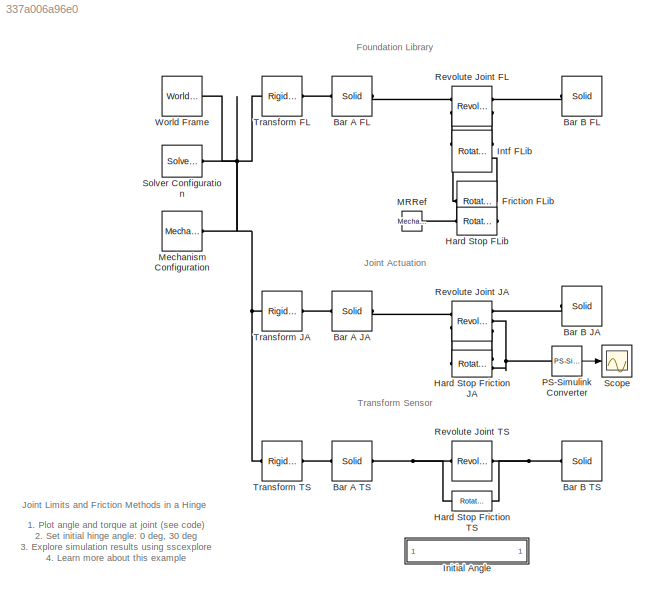
MODEL slx_337a006a96e0
KIND model
CONFIG AbsTol = 1e-3
CONFIG EnableMultiTasking = on
CONFIG FixedStep = auto
CONFIG MaxStep = auto
CONFIG MinStep = auto
CONFIG PostLoadFcn = warning off sm:compiler:topologyAnalysis:DanglingBlock\n
CONFIG PreLoadFcn = init_hinge_angle = 0;
CONFIG RelTol = 1e-3
CONFIG SampleTimeConstraint = Unconstrained
CONFIG Solver = VariableStepAuto
CONFIG SolverName = VariableStepAuto
CONFIG StartTime = 0.0
CONFIG StopTime = 10.0
BLOCK [Reference] Bar A FL  REF=sm_lib/Body Elements/Solid
  Ports = [0, 0, 0, 0, 0, 1, 1]
  SourceBlock = sm_lib/Body Elements/Solid
  SourceProductBaseCode = MS
  SourceProductName = Simscape Multibody
  SourceType = Solid
BLOCK [Reference] Bar A JA  REF=sm_lib/Body Elements/Solid
  Ports = [0, 0, 0, 0, 0, 1, 1]
  SourceBlock = sm_lib/Body Elements/Solid
  SourceProductBaseCode = MS
  SourceProductName = Simscape Multibody
  SourceType = Solid
BLOCK [Reference] Bar A TS  REF=sm_lib/Body Elements/Solid
  Ports = [0, 0, 0, 0, 0, 1, 1]
  SourceBlock = sm_lib/Body Elements/Solid
  SourceProductBaseCode = MS
  SourceProductName = Simscape Multibody
  SourceType = Solid
BLOCK [Reference] Bar B FL  REF=sm_lib/Body Elements/Solid
  Ports = [0, 0, 0, 0, 0, 1, 1]
  SourceBlock = sm_lib/Body Elements/Solid
  SourceProductBaseCode = MS
  SourceProductName = Simscape Multibody
  SourceType = Solid
BLOCK [Reference] Bar B JA  REF=sm_lib/Body Elements/Solid
  Ports = [0, 0, 0, 0, 0, 1, 1]
  SourceBlock = sm_lib/Body Elements/Solid
  SourceProductBaseCode = MS
  SourceProductName = Simscape Multibody
  SourceType = Solid
BLOCK [Reference] Bar B TS  REF=sm_lib/Body Elements/Solid
  Ports = [0, 0, 0, 0, 0, 1, 1]
  SourceBlock = sm_lib/Body Elements/Solid
  SourceProductBaseCode = MS
  SourceProductName = Simscape Multibody
  SourceType = Solid
BLOCK [Reference] Friction FLib  REF=fl_lib/Mechanical/Rotational Elements/Rotational Friction
  Ports = [0, 0, 0, 0, 0, 1, 1]
  SourceBlock = fl_lib/Mechanical/Rotational Elements/Rotational Friction
  SourceProductBaseCode = SS
  SourceProductName = Simscape
  SourceType = Rotational Friction
BLOCK [Reference] Hard Stop FLib  REF=fl_lib/Mechanical/Rotational Elements/Rotational Hard Stop
  Ports = [0, 0, 0, 0, 0, 1, 1]
  SourceBlock = fl_lib/Mechanical/Rotational Elements/Rotational Hard Stop
  SourceProductBaseCode = SS
  SourceProductName = Simscape
  SourceType = Rotational Hard Stop
BLOCK [Reference] Hard Stop Friction JA  REF=Multibody_Multiphysics_Lib/Mechanical/Rotational
Hard Stop
Friction PS
  Ports = [0, 0, 0, 0, 0, 1, 2]
  SourceBlock = Multibody_Multiphysics_Lib/Mechanical/Rotational\nHard Stop\nFriction PS
  SourceProductName = Simscape Multibody Multiphysics Library
  SourceType = Rotational Hard Stop and Friction, PS Ports
  Tag = PublishSubsystem
BLOCK [Reference] Hard Stop Friction TS  REF=Multibody_Multiphysics_Lib/Mechanical/Rotational
Hard Stop
Friction
  Ports = [0, 0, 0, 0, 0, 1, 1]
  SourceBlock = Multibody_Multiphysics_Lib/Mechanical/Rotational\nHard Stop\nFriction
  SourceProductName = Simscape Multibody Multiphysics Library
  SourceType = Rotational Hard Stop and Friction, Multibody Ports
  Tag = PublishSubsystem
BLOCK [SubSystem] Initial Angle
  Ports = []
  RequestExecContextInheritance = off
  Variant = off
BLOCK [Reference] Intf FLib  REF=Multibody_Multiphysics_Lib/Interfaces/Rotational
Simscape Intf
  Ports = [0, 0, 0, 0, 0, 2, 2]
  SourceBlock = Multibody_Multiphysics_Lib/Interfaces/Rotational\nSimscape Intf
  SourceProductName = Simscape Multibody Multiphysics Library
  SourceType = SubSystem
  Tag = PublishSubsystem
BLOCK [Reference] MRRef  REF=fl_lib/Mechanical/Rotational Elements/Mechanical
Rotational Reference
  Ports = [0, 0, 0, 0, 0, 1]
  SourceBlock = fl_lib/Mechanical/Rotational Elements/Mechanical\nRotational Reference
  SourceProductBaseCode = SS
  SourceProductName = Simscape
  SourceType = Mechanical\nRotational Reference
BLOCK [Reference] Mechanism Configuration  REF=sm_lib/Utilities/Mechanism
Configuration
  Ports = [0, 0, 0, 0, 0, 0, 1]
  SourceBlock = sm_lib/Utilities/Mechanism\nConfiguration
  SourceProductBaseCode = MS
  SourceProductName = Simscape Multibody
  SourceType = Mechanism\nConfiguration
BLOCK [Reference] PS-Simulink Converter  REF=nesl_utility/PS-Simulink
Converter
  Ports = [0, 1, 0, 0, 0, 1]
  SourceBlock = nesl_utility/PS-Simulink\nConverter
  SourceProductBaseCode = SS
  SourceProductName = Simscape
  SourceType = PS-Simulink\nConverter
BLOCK [Reference] Revolute Joint  FL  REF=sm_lib/Joints/Revolute Joint
  Ports = [0, 0, 0, 0, 0, 2, 2]
  SourceBlock = sm_lib/Joints/Revolute Joint
  SourceProductBaseCode = MS
  SourceProductName = Simscape Multibody
  SourceType = Revolute Joint
BLOCK [Reference] Revolute Joint JA  REF=sm_lib/Joints/Revolute Joint
  Ports = [0, 0, 0, 0, 0, 2, 3]
  SourceBlock = sm_lib/Joints/Revolute Joint
  SourceProductBaseCode = MS
  SourceProductName = Simscape Multibody
  SourceType = Revolute Joint
BLOCK [Reference] Revolute Joint TS  REF=sm_lib/Joints/Revolute Joint
  Ports = [0, 0, 0, 0, 0, 1, 1]
  SourceBlock = sm_lib/Joints/Revolute Joint
  SourceProductBaseCode = MS
  SourceProductName = Simscape Multibody
  SourceType = Revolute Joint
BLOCK [Scope] Scope
  NumInputPorts = 1
  Ports = [1]
  ScopeSpecificationString = Simulink.scopes.TimeScopeBlockCfg('CurrentConfiguration', extmgr.ConfigurationSet(extmgr.Configuration('Core','General UI',true,'FigureColor',[0.501960784313725 0.501960784313725 0.501960784313725]),extmgr.Configuration('Core','Source UI',true),extmgr.Configuration('Sources','WiredSimulink',true,'DataLoggingSaveFormat','StructureWithTime','DataLoggingDecimation','1'),extmgr.Configuration('Visuals'...<+2604ch>
BLOCK [Reference] Solver Configuration  REF=nesl_utility/Solver
Configuration
  Ports = [0, 0, 0, 0, 0, 0, 1]
  SourceBlock = nesl_utility/Solver\nConfiguration
  SourceProductBaseCode = SS
  SourceProductName = Simscape
  SourceType = Solver\nConfiguration
BLOCK [Reference] Transform FL  REF=sm_lib/Frames and
Transforms/Rigid
Transform
  Ports = [0, 0, 0, 0, 0, 1, 1]
  SourceBlock = sm_lib/Frames and\nTransforms/Rigid\nTransform
  SourceProductBaseCode = MS
  SourceProductName = Simscape Multibody
  SourceType = Rigid\nTransform
BLOCK [Reference] Transform JA  REF=sm_lib/Frames and
Transforms/Rigid
Transform
  Ports = [0, 0, 0, 0, 0, 1, 1]
  SourceBlock = sm_lib/Frames and\nTransforms/Rigid\nTransform
  SourceProductBaseCode = MS
  SourceProductName = Simscape Multibody
  SourceType = Rigid\nTransform
BLOCK [Reference] Transform TS  REF=sm_lib/Frames and
Transforms/Rigid
Transform
  Ports = [0, 0, 0, 0, 0, 1, 1]
  SourceBlock = sm_lib/Frames and\nTransforms/Rigid\nTransform
  SourceProductBaseCode = MS
  SourceProductName = Simscape Multibody
  SourceType = Rigid\nTransform
BLOCK [Reference] World Frame  REF=sm_lib/Frames and
Transforms/World Frame
  Ports = [0, 0, 0, 0, 0, 0, 1]
  SourceBlock = sm_lib/Frames and\nTransforms/World Frame
  SourceProductBaseCode = MS
  SourceProductName = Simscape Multibody
  SourceType = World Frame
ANNOTATION (root): 1. Plot angle and torque at joint ( see code ) 2. Set initial hinge angle: 0 deg , 30 deg 3. Explore simulation results using sscexplore 4. Learn more about this example
ANNOTATION (root): Foundation Library
ANNOTATION (root): Joint Actuation
ANNOTATION (root): Joint Limits and Friction Methods in a Hinge
ANNOTATION (root): Transform Sensor
LINE PS-Simulink Converter:1 -> Scope:1
PLINE Bar A FL:LConn1 -- Transform FL:RConn1
PLINE Bar A FL:RConn1 -- Revolute Joint  FL:LConn1
PLINE Bar A JA:LConn1 -- Transform JA:RConn1
PLINE Bar A JA:RConn1 -- Revolute Joint JA:LConn1
PLINE Bar A TS:LConn1 -- Transform TS:RConn1
PNET net1: Bar A TS:RConn1 -- Hard Stop Friction TS:LConn1 -- Revolute Joint TS:LConn1
PLINE Bar B FL:LConn1 -- Revolute Joint  FL:RConn1
PLINE Bar B JA:LConn1 -- Revolute Joint JA:RConn1
PNET net2: Bar B TS:LConn1 -- Hard Stop Friction TS:RConn1 -- Revolute Joint TS:RConn1
PNET net3: Friction FLib:LConn1 -- Hard Stop FLib:LConn1 -- Intf FLib:RConn2
PNET net4: Friction FLib:RConn1 -- Hard Stop FLib:RConn1 -- Intf FLib:LConn2 -- MRRef:LConn1
PLINE Hard Stop Friction JA:LConn1 -- Revolute Joint JA:LConn2
PLINE Hard Stop Friction JA:RConn1 -- Revolute Joint JA:RConn3
PNET net5: Hard Stop Friction JA:RConn2 -- PS-Simulink Converter:LConn1 -- Revolute Joint JA:RConn2
PLINE Intf FLib:LConn1 -- Revolute Joint  FL:LConn2
PLINE Intf FLib:RConn1 -- Revolute Joint  FL:RConn2
PNET net6: Mechanism Configuration:RConn1 -- Solver Configuration:RConn1 -- Transform FL:LConn1 -- Transform JA:LConn1 -- Transform TS:LConn1 -- World Frame:RConn1
note: PNET lines group multi-terminal physical nets as a canonical sorted terminal list (undirected conserving connections); 2-terminal nets keep the pairwise PLINE form
